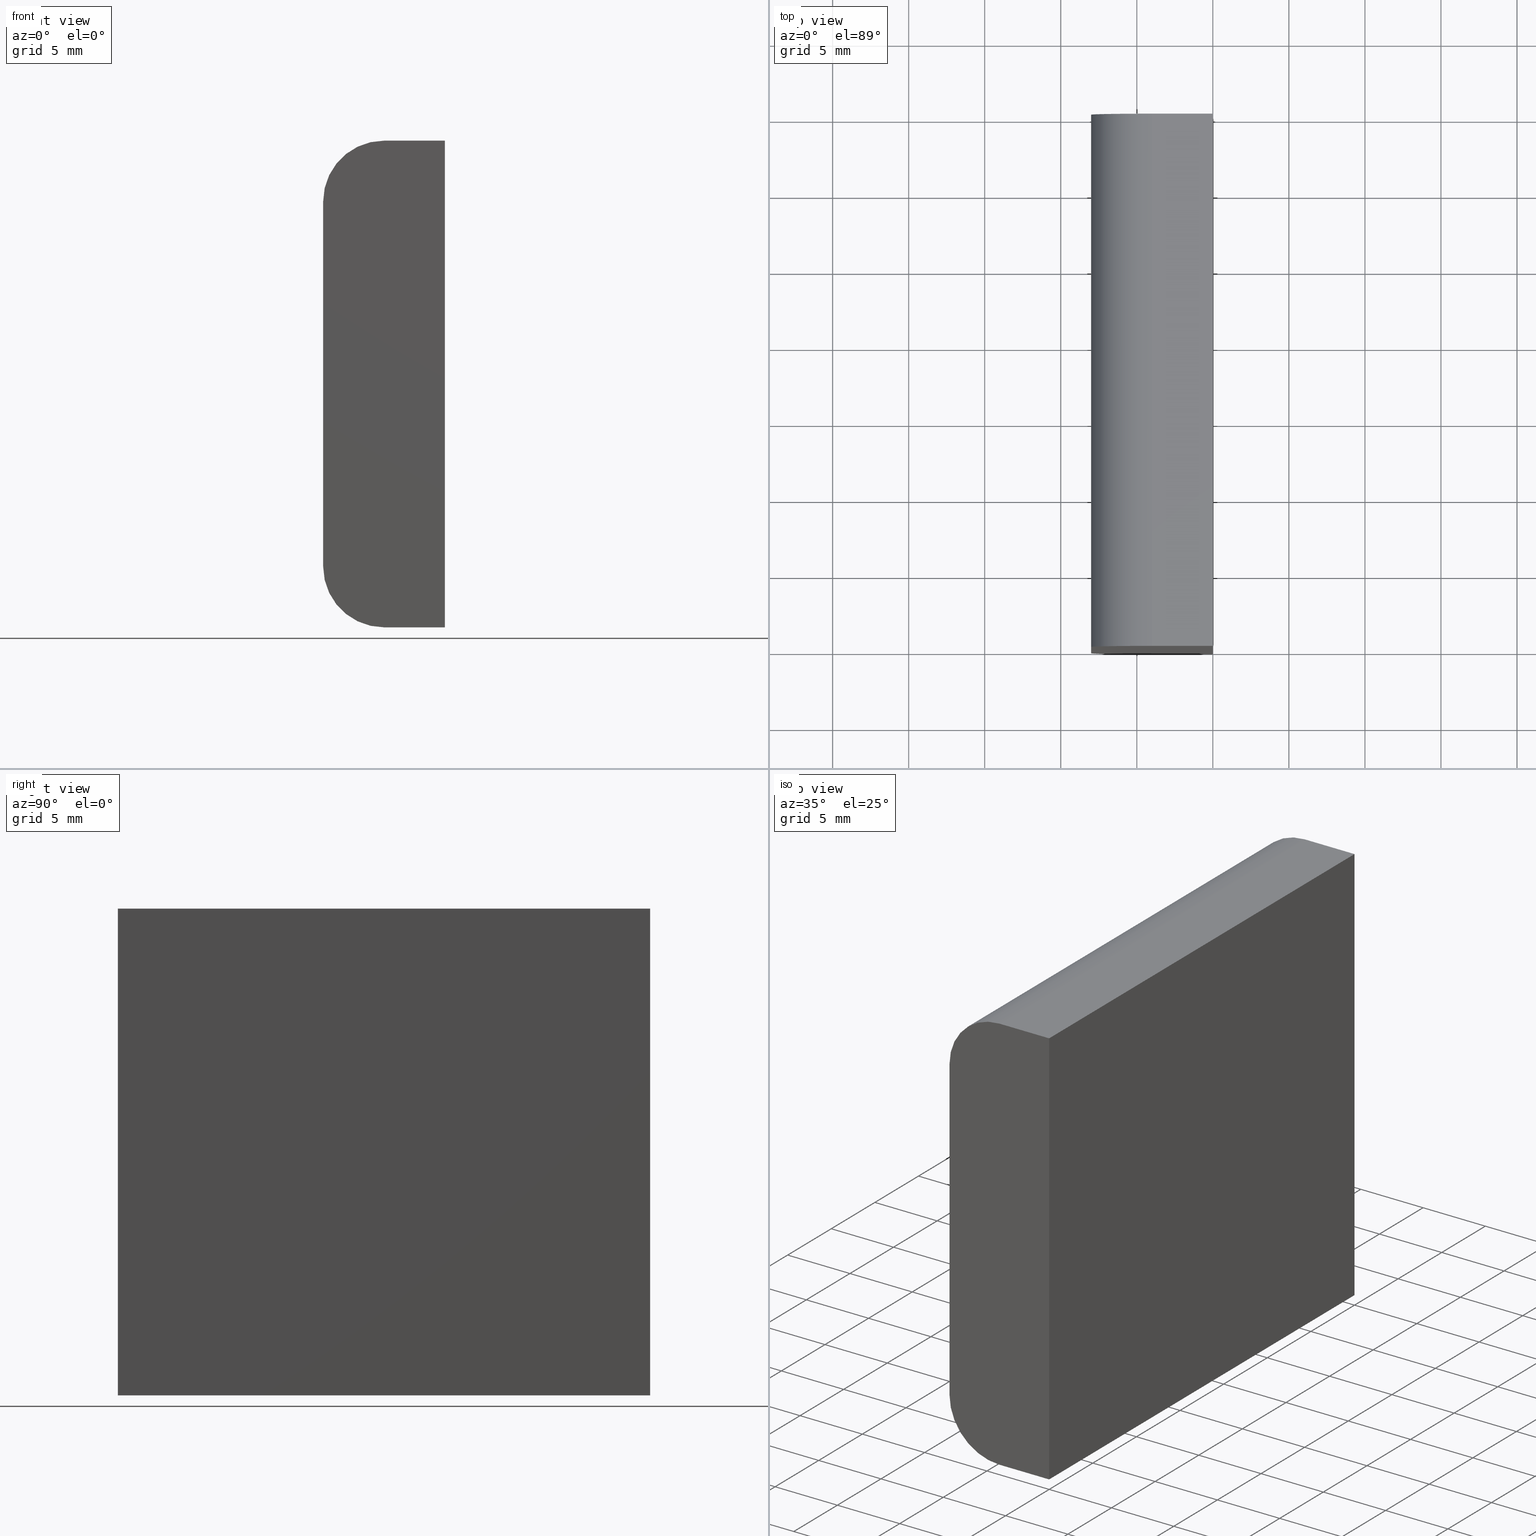
[diagram: canonical four-view strip — front | top / right | iso, engineering-drawing reading convention]
A machine part, canonical four-view strip (front | top / right | iso — engineering-drawing reading convention). The complete STEP part file that produces these views, byte-faithful:
ISO-10303-21;
HEADER;
/* Generated by software containing ST-Developer
 * from STEP Tools, Inc. (www.steptools.com) 
 */

FILE_DESCRIPTION(
/* description */ ('WKZ-0467'),
/* implementation_level */ '2;1');

FILE_NAME(
/* name */ 'O_3_01_03_00_00_WKZ-0467.stp',
/* time_stamp */ '2025-06-18T10:58:54+02:00',
/* author */ ('d.fischer'),
/* organization */ (''),
/* preprocessor_version */ 'ST-DEVELOPER v20',
/* originating_system */ 'Autodesk Inventor 2025',
/* authorisation */ '');

FILE_SCHEMA (('AUTOMOTIVE_DESIGN { 1 0 10303 214 3 1 1 }'));
ENDSEC;

DATA;
#10=MECHANICAL_DESIGN_GEOMETRIC_PRESENTATION_REPRESENTATION('',(#13),#262);
#11=SHAPE_REPRESENTATION_RELATIONSHIP('SRR','None',#269,#12);
#12=ADVANCED_BREP_SHAPE_REPRESENTATION('',(#14),#261);
#13=STYLED_ITEM('',(#278),#14);
#14=MANIFOLD_SOLID_BREP('Volumenk\X\F6rper1',#145);
#15=CIRCLE('',#170,4.);
#16=CIRCLE('',#171,4.);
#17=CIRCLE('',#174,4.);
#18=CIRCLE('',#175,4.);
#19=CYLINDRICAL_SURFACE('',#169,4.);
#20=CYLINDRICAL_SURFACE('',#173,4.);
#21=FACE_OUTER_BOUND('',#29,.T.);
#22=FACE_OUTER_BOUND('',#30,.T.);
#23=FACE_OUTER_BOUND('',#31,.T.);
#24=FACE_OUTER_BOUND('',#32,.T.);
#25=FACE_OUTER_BOUND('',#33,.T.);
#26=FACE_OUTER_BOUND('',#34,.T.);
#27=FACE_OUTER_BOUND('',#35,.T.);
#28=FACE_OUTER_BOUND('',#36,.T.);
#29=EDGE_LOOP('',(#95,#96,#97,#98));
#30=EDGE_LOOP('',(#99,#100,#101,#102));
#31=EDGE_LOOP('',(#103,#104,#105,#106));
#32=EDGE_LOOP('',(#107,#108,#109,#110));
#33=EDGE_LOOP('',(#111,#112,#113,#114));
#34=EDGE_LOOP('',(#115,#116,#117,#118));
#35=EDGE_LOOP('',(#119,#120,#121,#122,#123,#124));
#36=EDGE_LOOP('',(#125,#126,#127,#128,#129,#130));
#37=LINE('',#224,#51);
#38=LINE('',#226,#52);
#39=LINE('',#228,#53);
#40=LINE('',#229,#54);
#41=LINE('',#235,#55);
#42=LINE('',#238,#56);
#43=LINE('',#240,#57);
#44=LINE('',#241,#58);
#45=LINE('',#247,#59);
#46=LINE('',#250,#60);
#47=LINE('',#252,#61);
#48=LINE('',#253,#62);
#49=LINE('',#255,#63);
#50=LINE('',#256,#64);
#51=VECTOR('',#184,10.);
#52=VECTOR('',#185,10.);
#53=VECTOR('',#186,10.);
#54=VECTOR('',#187,10.);
#55=VECTOR('',#194,10.);
#56=VECTOR('',#197,10.);
#57=VECTOR('',#198,10.);
#58=VECTOR('',#199,10.);
#59=VECTOR('',#206,10.);
#60=VECTOR('',#209,10.);
#61=VECTOR('',#210,10.);
#62=VECTOR('',#211,10.);
#63=VECTOR('',#214,10.);
#64=VECTOR('',#215,10.);
#65=VERTEX_POINT('',#222);
#66=VERTEX_POINT('',#223);
#67=VERTEX_POINT('',#225);
#68=VERTEX_POINT('',#227);
#69=VERTEX_POINT('',#231);
#70=VERTEX_POINT('',#233);
#71=VERTEX_POINT('',#237);
#72=VERTEX_POINT('',#239);
#73=VERTEX_POINT('',#243);
#74=VERTEX_POINT('',#245);
#75=VERTEX_POINT('',#249);
#76=VERTEX_POINT('',#251);
#77=EDGE_CURVE('',#65,#66,#37,.T.);
#78=EDGE_CURVE('',#66,#67,#38,.T.);
#79=EDGE_CURVE('',#68,#67,#39,.T.);
#80=EDGE_CURVE('',#65,#68,#40,.T.);
#81=EDGE_CURVE('',#69,#65,#15,.T.);
#82=EDGE_CURVE('',#70,#68,#16,.T.);
#83=EDGE_CURVE('',#69,#70,#41,.T.);
#84=EDGE_CURVE('',#71,#69,#42,.T.);
#85=EDGE_CURVE('',#72,#70,#43,.T.);
#86=EDGE_CURVE('',#71,#72,#44,.T.);
#87=EDGE_CURVE('',#73,#71,#17,.T.);
#88=EDGE_CURVE('',#74,#72,#18,.T.);
#89=EDGE_CURVE('',#73,#74,#45,.T.);
#90=EDGE_CURVE('',#75,#73,#46,.T.);
#91=EDGE_CURVE('',#76,#74,#47,.T.);
#92=EDGE_CURVE('',#75,#76,#48,.T.);
#93=EDGE_CURVE('',#66,#75,#49,.T.);
#94=EDGE_CURVE('',#67,#76,#50,.T.);
#95=ORIENTED_EDGE('',*,*,#77,.T.);
#96=ORIENTED_EDGE('',*,*,#78,.T.);
#97=ORIENTED_EDGE('',*,*,#79,.F.);
#98=ORIENTED_EDGE('',*,*,#80,.F.);
#99=ORIENTED_EDGE('',*,*,#81,.T.);
#100=ORIENTED_EDGE('',*,*,#80,.T.);
#101=ORIENTED_EDGE('',*,*,#82,.F.);
#102=ORIENTED_EDGE('',*,*,#83,.F.);
#103=ORIENTED_EDGE('',*,*,#84,.T.);
#104=ORIENTED_EDGE('',*,*,#83,.T.);
#105=ORIENTED_EDGE('',*,*,#85,.F.);
#106=ORIENTED_EDGE('',*,*,#86,.F.);
#107=ORIENTED_EDGE('',*,*,#87,.T.);
#108=ORIENTED_EDGE('',*,*,#86,.T.);
#109=ORIENTED_EDGE('',*,*,#88,.F.);
#110=ORIENTED_EDGE('',*,*,#89,.F.);
#111=ORIENTED_EDGE('',*,*,#90,.T.);
#112=ORIENTED_EDGE('',*,*,#89,.T.);
#113=ORIENTED_EDGE('',*,*,#91,.F.);
#114=ORIENTED_EDGE('',*,*,#92,.F.);
#115=ORIENTED_EDGE('',*,*,#93,.T.);
#116=ORIENTED_EDGE('',*,*,#92,.T.);
#117=ORIENTED_EDGE('',*,*,#94,.F.);
#118=ORIENTED_EDGE('',*,*,#78,.F.);
#119=ORIENTED_EDGE('',*,*,#94,.T.);
#120=ORIENTED_EDGE('',*,*,#91,.T.);
#121=ORIENTED_EDGE('',*,*,#88,.T.);
#122=ORIENTED_EDGE('',*,*,#85,.T.);
#123=ORIENTED_EDGE('',*,*,#82,.T.);
#124=ORIENTED_EDGE('',*,*,#79,.T.);
#125=ORIENTED_EDGE('',*,*,#93,.F.);
#126=ORIENTED_EDGE('',*,*,#77,.F.);
#127=ORIENTED_EDGE('',*,*,#81,.F.);
#128=ORIENTED_EDGE('',*,*,#84,.F.);
#129=ORIENTED_EDGE('',*,*,#87,.F.);
#130=ORIENTED_EDGE('',*,*,#90,.F.);
#131=PLANE('',#168);
#132=PLANE('',#172);
#133=PLANE('',#176);
#134=PLANE('',#177);
#135=PLANE('',#178);
#136=PLANE('',#179);
#137=ADVANCED_FACE('',(#21),#131,.T.);
#138=ADVANCED_FACE('',(#22),#19,.T.);
#139=ADVANCED_FACE('',(#23),#132,.T.);
#140=ADVANCED_FACE('',(#24),#20,.T.);
#141=ADVANCED_FACE('',(#25),#133,.T.);
#142=ADVANCED_FACE('',(#26),#134,.T.);
#143=ADVANCED_FACE('',(#27),#135,.T.);
#144=ADVANCED_FACE('',(#28),#136,.F.);
#145=CLOSED_SHELL('',(#137,#138,#139,#140,#141,#142,#143,#144));
#146=DERIVED_UNIT_ELEMENT(#149,1.);
#147=DERIVED_UNIT_ELEMENT(#264,-3.);
#148=DIMENSIONAL_EXPONENTS(0.,1.,0.,0.,0.,0.,0.);
#149=(
CONVERSION_BASED_UNIT('gram',#151)
MASS_UNIT()
NAMED_UNIT(#148)
);
#150=(
MASS_UNIT()
NAMED_UNIT(*)
SI_UNIT(.KILO.,.GRAM.)
);
#151=MASS_MEASURE_WITH_UNIT(MASS_MEASURE(0.001),#150);
#152=DERIVED_UNIT((#146,#147));
#153=MEASURE_REPRESENTATION_ITEM('density measure',
POSITIVE_RATIO_MEASURE(1.),#152);
#154=PROPERTY_DEFINITION_REPRESENTATION(#159,#156);
#155=PROPERTY_DEFINITION_REPRESENTATION(#160,#157);
#156=REPRESENTATION('material name',(#158),#261);
#157=REPRESENTATION('density',(#153),#261);
#158=DESCRIPTIVE_REPRESENTATION_ITEM('Generisch','Generisch');
#159=PROPERTY_DEFINITION('material property','material name',#271);
#160=PROPERTY_DEFINITION('material property','density of part',#271);
#161=DATE_TIME_ROLE('creation_date');
#162=APPLIED_DATE_AND_TIME_ASSIGNMENT(#163,#161,(#271));
#163=DATE_AND_TIME(#164,#165);
#164=CALENDAR_DATE(2025,7,4);
#165=LOCAL_TIME(0,0,0.,#166);
#166=COORDINATED_UNIVERSAL_TIME_OFFSET(0,0,.BEHIND.);
#167=AXIS2_PLACEMENT_3D('',#220,#180,#181);
#168=AXIS2_PLACEMENT_3D('',#221,#182,#183);
#169=AXIS2_PLACEMENT_3D('',#230,#188,#189);
#170=AXIS2_PLACEMENT_3D('',#232,#190,#191);
#171=AXIS2_PLACEMENT_3D('',#234,#192,#193);
#172=AXIS2_PLACEMENT_3D('',#236,#195,#196);
#173=AXIS2_PLACEMENT_3D('',#242,#200,#201);
#174=AXIS2_PLACEMENT_3D('',#244,#202,#203);
#175=AXIS2_PLACEMENT_3D('',#246,#204,#205);
#176=AXIS2_PLACEMENT_3D('',#248,#207,#208);
#177=AXIS2_PLACEMENT_3D('',#254,#212,#213);
#178=AXIS2_PLACEMENT_3D('',#257,#216,#217);
#179=AXIS2_PLACEMENT_3D('',#258,#218,#219);
#180=DIRECTION('axis',(0.,0.,1.));
#181=DIRECTION('refdir',(1.,0.,0.));
#182=DIRECTION('center_axis',(0.,0.,1.));
#183=DIRECTION('ref_axis',(1.,0.,0.));
#184=DIRECTION('',(1.,0.,0.));
#185=DIRECTION('',(0.,1.,0.));
#186=DIRECTION('',(1.,0.,0.));
#187=DIRECTION('',(0.,1.,0.));
#188=DIRECTION('center_axis',(0.,1.,0.));
#189=DIRECTION('ref_axis',(-1.,0.,0.));
#190=DIRECTION('center_axis',(0.,1.,0.));
#191=DIRECTION('ref_axis',(-1.,0.,0.));
#192=DIRECTION('center_axis',(0.,1.,0.));
#193=DIRECTION('ref_axis',(-1.,0.,0.));
#194=DIRECTION('',(0.,1.,0.));
#195=DIRECTION('center_axis',(-1.,0.,0.));
#196=DIRECTION('ref_axis',(0.,0.,1.));
#197=DIRECTION('',(0.,0.,1.));
#198=DIRECTION('',(0.,0.,1.));
#199=DIRECTION('',(0.,1.,0.));
#200=DIRECTION('center_axis',(0.,1.,0.));
#201=DIRECTION('ref_axis',(0.,0.,-1.));
#202=DIRECTION('center_axis',(0.,1.,0.));
#203=DIRECTION('ref_axis',(0.,0.,-1.));
#204=DIRECTION('center_axis',(0.,1.,0.));
#205=DIRECTION('ref_axis',(0.,0.,-1.));
#206=DIRECTION('',(0.,1.,0.));
#207=DIRECTION('center_axis',(0.,0.,-1.));
#208=DIRECTION('ref_axis',(-1.,0.,0.));
#209=DIRECTION('',(-1.,0.,0.));
#210=DIRECTION('',(-1.,0.,0.));
#211=DIRECTION('',(0.,1.,0.));
#212=DIRECTION('center_axis',(1.,0.,0.));
#213=DIRECTION('ref_axis',(0.,0.,-1.));
#214=DIRECTION('',(0.,0.,-1.));
#215=DIRECTION('',(0.,0.,-1.));
#216=DIRECTION('center_axis',(0.,1.,0.));
#217=DIRECTION('ref_axis',(0.,0.,1.));
#218=DIRECTION('center_axis',(0.,1.,0.));
#219=DIRECTION('ref_axis',(0.,0.,1.));
#220=CARTESIAN_POINT('',(0.,0.,0.));
#221=CARTESIAN_POINT('Origin',(-4.,0.,16.));
#222=CARTESIAN_POINT('',(-4.,0.,16.));
#223=CARTESIAN_POINT('',(0.,0.,16.));
#224=CARTESIAN_POINT('',(-4.,0.,16.));
#225=CARTESIAN_POINT('',(0.,35.,16.));
#226=CARTESIAN_POINT('',(0.,0.,16.));
#227=CARTESIAN_POINT('',(-4.,35.,16.));
#228=CARTESIAN_POINT('',(-4.,35.,16.));
#229=CARTESIAN_POINT('',(-4.,0.,16.));
#230=CARTESIAN_POINT('Origin',(-4.,0.,12.));
#231=CARTESIAN_POINT('',(-8.,0.,12.));
#232=CARTESIAN_POINT('Origin',(-4.,0.,12.));
#233=CARTESIAN_POINT('',(-8.,35.,12.));
#234=CARTESIAN_POINT('Origin',(-4.,35.,12.));
#235=CARTESIAN_POINT('',(-8.,0.,12.));
#236=CARTESIAN_POINT('Origin',(-8.,0.,-12.));
#237=CARTESIAN_POINT('',(-8.,0.,-12.));
#238=CARTESIAN_POINT('',(-8.,0.,-12.));
#239=CARTESIAN_POINT('',(-8.,35.,-12.));
#240=CARTESIAN_POINT('',(-8.,35.,-12.));
#241=CARTESIAN_POINT('',(-8.,0.,-12.));
#242=CARTESIAN_POINT('Origin',(-4.,0.,-12.));
#243=CARTESIAN_POINT('',(-4.,0.,-16.));
#244=CARTESIAN_POINT('Origin',(-4.,0.,-12.));
#245=CARTESIAN_POINT('',(-4.,35.,-16.));
#246=CARTESIAN_POINT('Origin',(-4.,35.,-12.));
#247=CARTESIAN_POINT('',(-4.,0.,-16.));
#248=CARTESIAN_POINT('Origin',(0.,0.,-16.));
#249=CARTESIAN_POINT('',(0.,0.,-16.));
#250=CARTESIAN_POINT('',(0.,0.,-16.));
#251=CARTESIAN_POINT('',(0.,35.,-16.));
#252=CARTESIAN_POINT('',(0.,35.,-16.));
#253=CARTESIAN_POINT('',(0.,0.,-16.));
#254=CARTESIAN_POINT('Origin',(0.,0.,16.));
#255=CARTESIAN_POINT('',(0.,0.,16.));
#256=CARTESIAN_POINT('',(0.,35.,16.));
#257=CARTESIAN_POINT('Origin',(-4.,35.,0.));
#258=CARTESIAN_POINT('Origin',(-4.,0.,0.));
#259=UNCERTAINTY_MEASURE_WITH_UNIT(LENGTH_MEASURE(0.01),#263,
'DISTANCE_ACCURACY_VALUE',
'Maximum model space distance between geometric entities at asserted c
onnectivities');
#260=UNCERTAINTY_MEASURE_WITH_UNIT(LENGTH_MEASURE(0.01),#263,
'DISTANCE_ACCURACY_VALUE',
'Maximum model space distance between geometric entities at asserted c
onnectivities');
#261=(
GEOMETRIC_REPRESENTATION_CONTEXT(3)
GLOBAL_UNCERTAINTY_ASSIGNED_CONTEXT((#259))
GLOBAL_UNIT_ASSIGNED_CONTEXT((#263,#265,#266))
REPRESENTATION_CONTEXT('','3D')
);
#262=(
GEOMETRIC_REPRESENTATION_CONTEXT(3)
GLOBAL_UNCERTAINTY_ASSIGNED_CONTEXT((#260))
GLOBAL_UNIT_ASSIGNED_CONTEXT((#263,#265,#266))
REPRESENTATION_CONTEXT('','3D')
);
#263=(
LENGTH_UNIT()
NAMED_UNIT(*)
SI_UNIT(.MILLI.,.METRE.)
);
#264=(
LENGTH_UNIT()
NAMED_UNIT(*)
SI_UNIT(.CENTI.,.METRE.)
);
#265=(
NAMED_UNIT(*)
PLANE_ANGLE_UNIT()
SI_UNIT($,.RADIAN.)
);
#266=(
NAMED_UNIT(*)
SI_UNIT($,.STERADIAN.)
SOLID_ANGLE_UNIT()
);
#267=SHAPE_DEFINITION_REPRESENTATION(#268,#269);
#268=PRODUCT_DEFINITION_SHAPE('',$,#271);
#269=SHAPE_REPRESENTATION('',(#167),#261);
#270=PRODUCT_DEFINITION_CONTEXT('part definition',#275,'design');
#271=PRODUCT_DEFINITION('O_3_01_03_00_00_WKZ-0467',
'O_3_01_03_00_00_WKZ-0467',#272,#270);
#272=PRODUCT_DEFINITION_FORMATION('',$,#277);
#273=PRODUCT_RELATED_PRODUCT_CATEGORY('O_3_01_03_00_00_WKZ-0467',
'O_3_01_03_00_00_WKZ-0467',(#277));
#274=APPLICATION_PROTOCOL_DEFINITION('international standard',
'automotive_design',2009,#275);
#275=APPLICATION_CONTEXT(
'Core Data for Automotive Mechanical Design Process');
#276=PRODUCT_CONTEXT('part definition',#275,'mechanical');
#277=PRODUCT('O_3_01_03_00_00_WKZ-0467','O_3_01_03_00_00_WKZ-0467',
'WKZ-0467',(#276));
#278=PRESENTATION_STYLE_ASSIGNMENT((#279));
#279=SURFACE_STYLE_USAGE(.BOTH.,#282);
#280=SURFACE_STYLE_RENDERING_WITH_PROPERTIES($,#286,(#281));
#281=SURFACE_STYLE_TRANSPARENT(0.);
#282=SURFACE_SIDE_STYLE('',(#283,#280));
#283=SURFACE_STYLE_FILL_AREA(#284);
#284=FILL_AREA_STYLE('',(#285));
#285=FILL_AREA_STYLE_COLOUR('',#286);
#286=COLOUR_RGB('',0.749019607843137,0.749019607843137,0.749019607843137);
ENDSEC;
END-ISO-10303-21;
